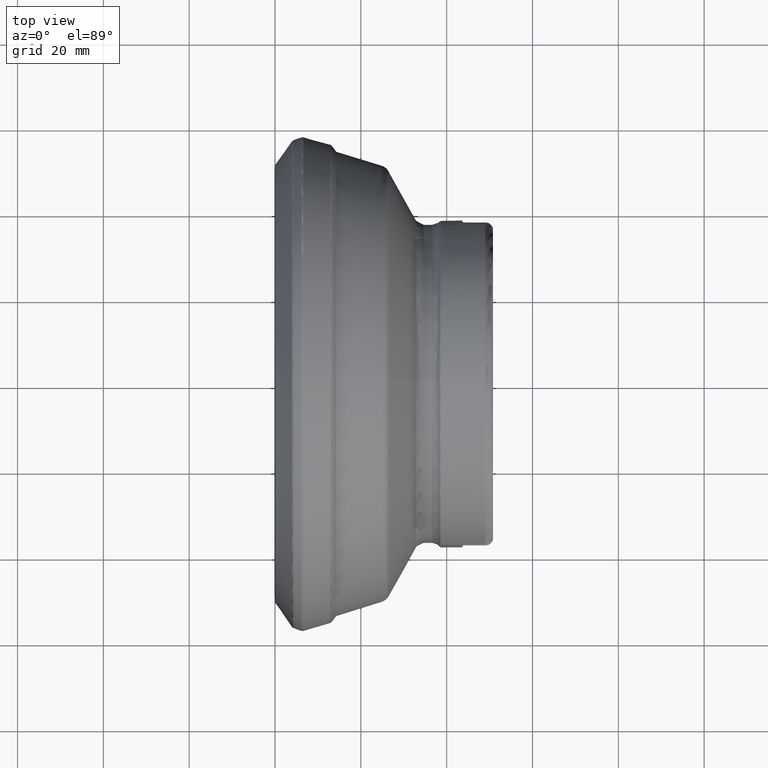
[diagram: clean part render]
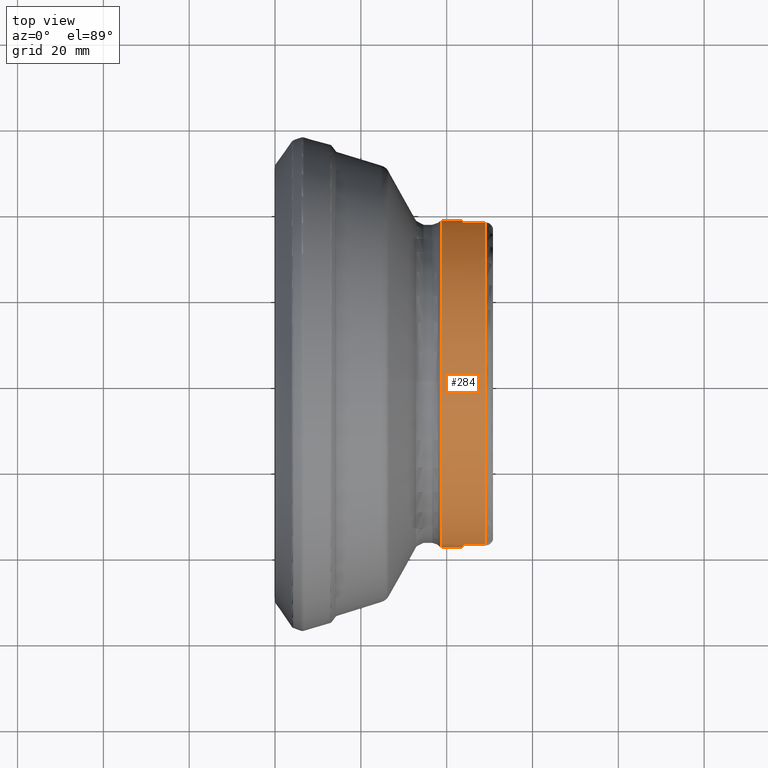
[diagram: same view with one face highlighted and labeled with its STEP entity id]
A machine part, top view. The second image highlights one B-rep face of the part: STEP entity #284.
In plain terms, the highlighted cylindrical surface (bore or boss wall) has radius 38.1 mm, axis along (-1, 0, 0).
Its self-contained STEP definition (entity closure, byte-faithful):
#111=CYLINDRICAL_SURFACE('',#1171,38.1);
#190=LINE('',#1877,#214);
#191=LINE('',#1901,#215);
#194=LINE('',#1907,#218);
#195=LINE('',#1928,#219);
#214=VECTOR('',#1365,1.);
#215=VECTOR('',#1368,1.);
#218=VECTOR('',#1373,1.);
#219=VECTOR('',#1376,1.);
#284=ADVANCED_FACE('',(#461,#462),#111,.T.);
#379=B_SPLINE_CURVE_WITH_KNOTS('',3,(#1934,#1935,#1936,#1937,#1938,#1939,
#1940,#1941,#1942,#1943,#1944,#1945,#1946,#1947,#1948,#1949),
 .UNSPECIFIED.,.F.,.F.,(4,3,3,3,3,4),(0.,0.211260637170696,0.422426481037291,
0.63508121501719,0.850707702014662,1.),.UNSPECIFIED.);
#380=B_SPLINE_CURVE_WITH_KNOTS('',3,(#1953,#1954,#1955,#1956,#1957,#1958,
#1959,#1960,#1961,#1962,#1963,#1964,#1965,#1966,#1967,#1968),
 .UNSPECIFIED.,.F.,.F.,(4,3,3,3,3,4),(0.,0.218315517150565,0.436679505597778,
0.654183629157567,0.869008966561983,1.),.UNSPECIFIED.);
#381=B_SPLINE_CURVE_WITH_KNOTS('',3,(#1974,#1975,#1976,#1977,#1978,#1979,
#1980,#1981,#1982,#1983,#1984,#1985,#1986,#1987,#1988,#1989),
 .UNSPECIFIED.,.F.,.F.,(4,3,3,3,3,4),(0.,0.218322961471812,0.436694534207853,
0.65420384479731,0.86902846336515,1.),.UNSPECIFIED.);
#382=B_SPLINE_CURVE_WITH_KNOTS('',3,(#1993,#1994,#1995,#1996,#1997,#1998,
#1999,#2000,#2001,#2002,#2003,#2004,#2005,#2006,#2007,#2008),
 .UNSPECIFIED.,.F.,.F.,(4,3,3,3,3,4),(0.,0.211268137601659,0.42244165719353,
0.635101326784174,0.850726867905933,1.),.UNSPECIFIED.);
#461=FACE_BOUND('',#573,.T.);
#462=FACE_BOUND('',#574,.T.);
#573=EDGE_LOOP('',(#776));
#574=EDGE_LOOP('',(#777,#778,#779,#780,#781,#782,#783,#784,#785,#786,#787,
#788));
#776=ORIENTED_EDGE('',*,*,#950,.T.);
#777=ORIENTED_EDGE('',*,*,#995,.F.);
#778=ORIENTED_EDGE('',*,*,#1009,.T.);
#779=ORIENTED_EDGE('',*,*,#992,.F.);
#780=ORIENTED_EDGE('',*,*,#998,.T.);
#781=ORIENTED_EDGE('',*,*,#1001,.F.);
#782=ORIENTED_EDGE('',*,*,#1000,.T.);
#783=ORIENTED_EDGE('',*,*,#989,.F.);
#784=ORIENTED_EDGE('',*,*,#1010,.T.);
#785=ORIENTED_EDGE('',*,*,#986,.F.);
#786=ORIENTED_EDGE('',*,*,#1005,.T.);
#787=ORIENTED_EDGE('',*,*,#1006,.F.);
#788=ORIENTED_EDGE('',*,*,#1003,.T.);
#856=VERTEX_POINT('',#1709);
#887=VERTEX_POINT('',#1876);
#888=VERTEX_POINT('',#1878);
#889=VERTEX_POINT('',#1900);
#890=VERTEX_POINT('',#1902);
#891=VERTEX_POINT('',#1906);
#892=VERTEX_POINT('',#1908);
#893=VERTEX_POINT('',#1927);
#894=VERTEX_POINT('',#1929);
#895=VERTEX_POINT('',#1933);
#896=VERTEX_POINT('',#1952);
#897=VERTEX_POINT('',#1973);
#898=VERTEX_POINT('',#1992);
#950=EDGE_CURVE('',#856,#856,#1042,.T.);
#986=EDGE_CURVE('',#887,#888,#190,.T.);
#989=EDGE_CURVE('',#889,#890,#191,.T.);
#992=EDGE_CURVE('',#891,#892,#194,.T.);
#995=EDGE_CURVE('',#893,#894,#195,.T.);
#998=EDGE_CURVE('',#891,#895,#379,.T.);
#1000=EDGE_CURVE('',#896,#890,#380,.T.);
#1001=EDGE_CURVE('',#896,#895,#1065,.T.);
#1003=EDGE_CURVE('',#897,#894,#381,.T.);
#1005=EDGE_CURVE('',#887,#898,#382,.T.);
#1006=EDGE_CURVE('',#897,#898,#1066,.T.);
#1009=EDGE_CURVE('',#893,#892,#1069,.T.);
#1010=EDGE_CURVE('',#889,#888,#1070,.T.);
#1042=CIRCLE('',#1109,38.1);
#1065=CIRCLE('',#1155,38.1);
#1066=CIRCLE('',#1159,38.1);
#1069=CIRCLE('',#1169,38.1);
#1070=CIRCLE('',#1170,38.1);
#1109=AXIS2_PLACEMENT_3D('',#1708,#1280,#1281);
#1155=AXIS2_PLACEMENT_3D('',#1970,#1386,#1387);
#1159=AXIS2_PLACEMENT_3D('',#2010,#1396,#1397);
#1169=AXIS2_PLACEMENT_3D('',#2020,#1416,#1417);
#1170=AXIS2_PLACEMENT_3D('',#2021,#1418,#1419);
#1171=AXIS2_PLACEMENT_3D('',#2022,#1420,#1421);
#1280=DIRECTION('',(1.,0.,0.));
#1281=DIRECTION('',(0.,0.,-1.));
#1365=DIRECTION('',(1.,0.,0.));
#1368=DIRECTION('',(-1.,0.,0.));
#1373=DIRECTION('',(1.,0.,0.));
#1376=DIRECTION('',(-1.,0.,0.));
#1386=DIRECTION('',(1.,0.,5.2968655755017E-16));
#1387=DIRECTION('',(5.46369598732853E-16,0.,-1.));
#1396=DIRECTION('',(1.,0.,5.2968655755017E-16));
#1397=DIRECTION('',(5.46369598732853E-16,0.,-1.));
#1416=DIRECTION('',(-1.,0.,0.));
#1417=DIRECTION('',(0.,0.,1.));
#1418=DIRECTION('',(-1.,0.,0.));
#1419=DIRECTION('',(0.,0.,1.));
#1420=DIRECTION('',(-1.,0.,0.));
#1421=DIRECTION('',(0.,0.,1.));
#1708=CARTESIAN_POINT('',(38.850243328103,0.,0.));
#1709=CARTESIAN_POINT('',(38.850243328103,0.,-38.1));
#1876=CARTESIAN_POINT('',(44.46,-37.5333106687913,-6.54680000000002));
#1877=CARTESIAN_POINT('',(5.,-37.5333106687913,-6.54680000000003));
#1878=CARTESIAN_POINT('',(49.0000000000003,-37.5333106687952,-6.54680000000002));
#1900=CARTESIAN_POINT('',(48.9999999999999,37.5333106687913,-6.54680000000002));
#1901=CARTESIAN_POINT('',(5.,37.5333106687913,-6.54680000000003));
#1902=CARTESIAN_POINT('',(44.46,37.5333106687913,-6.54680000000002));
#1906=CARTESIAN_POINT('',(44.46,37.5321937776091,6.55319999999998));
#1907=CARTESIAN_POINT('',(5.,37.5321937776091,6.55319999999998));
#1908=CARTESIAN_POINT('',(48.9999999999999,37.5321937776091,6.55319999999998));
#1927=CARTESIAN_POINT('',(48.9999999999999,-37.5321937776091,6.55319999999998));
#1928=CARTESIAN_POINT('',(5.,-37.5321937776091,6.55319999999998));
#1929=CARTESIAN_POINT('',(44.46,-37.5321937776091,6.55319999999998));
#1933=CARTESIAN_POINT('',(43.66,37.6631210836277,5.75319999999998));
#1934=CARTESIAN_POINT('',(44.46,37.5321937776091,6.55319999999998));
#1935=CARTESIAN_POINT('',(44.3714188113453,37.5321937776091,6.55319999999998));
#1936=CARTESIAN_POINT('',(44.2816171420485,37.5348460844288,6.53805729414537));
#1937=CARTESIAN_POINT('',(44.1980536111645,37.5398671201076,6.50909952333362));
#1938=CARTESIAN_POINT('',(44.1145110303439,37.5448868969716,6.48014901247282));
#1939=CARTESIAN_POINT('',(44.0349129585389,37.5524035807129,6.43661655677731));
#1940=CARTESIAN_POINT('',(43.9656648154073,37.5616507507402,6.38219342228169));
#1941=CARTESIAN_POINT('',(43.8959240590744,37.5709637027196,6.32738313582369));
#1942=CARTESIAN_POINT('',(43.8347780038529,37.5822747721708,6.26005559082365));
#1943=CARTESIAN_POINT('',(43.7870116922627,37.5945033147956,6.18573524440085));
#1944=CARTESIAN_POINT('',(43.7385869844958,37.6069004118983,6.11039048913619));
#1945=CARTESIAN_POINT('',(43.7025901626869,37.6205705411518,6.02581258794613));
#1946=CARTESIAN_POINT('',(43.6818468347148,37.6342886940647,5.93888158593833));
#1947=CARTESIAN_POINT('',(43.667380490408,37.6438556991064,5.87825612566157));
#1948=CARTESIAN_POINT('',(43.66,37.6535992346279,5.81553444897055));
#1949=CARTESIAN_POINT('',(43.66,37.6631210836277,5.75319999999998));
#1952=CARTESIAN_POINT('',(43.66,37.6640981540777,-5.74680000000002));
#1953=CARTESIAN_POINT('',(43.66,37.6640981540777,-5.74680000000002));
#1954=CARTESIAN_POINT('',(43.66,37.6502909714423,-5.83729124417257));
#1955=CARTESIAN_POINT('',(43.6757774622788,37.6359495551653,-5.92897667597814));
#1956=CARTESIAN_POINT('',(43.7060422986636,37.6223123405002,-6.01428417634594));
#1957=CARTESIAN_POINT('',(43.7363106222923,37.6086735544969,-6.09960150620881));
#1958=CARTESIAN_POINT('',(43.7819194887008,37.5953649354798,-6.18090909345072));
#1959=CARTESIAN_POINT('',(43.8391853709283,37.5836453000991,-6.25136832672156));
#1960=CARTESIAN_POINT('',(43.8962184440716,37.5719733097991,-6.32154111457437));
#1961=CARTESIAN_POINT('',(43.9664308689839,37.5615593553777,-6.38291111838323));
#1962=CARTESIAN_POINT('',(44.0440045385,37.5534732610144,-6.43013577106091));
#1963=CARTESIAN_POINT('',(44.1206301406131,37.5454859909368,-6.47678326715832));
#1964=CARTESIAN_POINT('',(44.2065992186103,37.5395550929098,-6.51092619501384));
#1965=CARTESIAN_POINT('',(44.2946604345391,37.5363192994313,-6.52952781226505));
#1966=CARTESIAN_POINT('',(44.3488510171554,37.534328076258,-6.54097476386362));
#1967=CARTESIAN_POINT('',(44.4045778301136,37.5333106687913,-6.54680000000002));
#1968=CARTESIAN_POINT('',(44.46,37.5333106687913,-6.54680000000002));
#1970=CARTESIAN_POINT('',(43.66,0.,0.));
#1973=CARTESIAN_POINT('',(43.66,-37.6631210836277,5.75319999999998));
#1974=CARTESIAN_POINT('',(43.66,-37.6631210836277,5.75319999999998));
#1975=CARTESIAN_POINT('',(43.66,-37.6492978604999,5.84369324313899));
#1976=CARTESIAN_POINT('',(43.6757781337028,-37.6349401586361,5.93538063825415));
#1977=CARTESIAN_POINT('',(43.7060443436917,-37.6212877589164,6.02068994059719));
#1978=CARTESIAN_POINT('',(43.7363140514479,-37.6076337814333,6.10600910185864));
#1979=CARTESIAN_POINT('',(43.7819250922941,-37.5943106444462,6.18731844099184));
#1980=CARTESIAN_POINT('',(43.8391939689025,-37.5825784529401,6.25777890537852));
#1981=CARTESIAN_POINT('',(43.8962293909592,-37.5708940872982,6.32795214017194));
#1982=CARTESIAN_POINT('',(43.966444882224,-37.5604693158802,6.38932237409401));
#1983=CARTESIAN_POINT('',(44.0440220526838,-37.5523750249864,6.43654643289225));
#1984=CARTESIAN_POINT('',(44.1206490498869,-37.5443798738098,6.48319208650406));
#1985=CARTESIAN_POINT('',(44.2066196939437,-37.5384433070513,6.51733308244535));
#1986=CARTESIAN_POINT('',(44.2946822393625,-37.535204640827,6.53593241789117));
#1987=CARTESIAN_POINT('',(44.3488658694234,-37.5332119356224,6.54737632411012));
#1988=CARTESIAN_POINT('',(44.4045852038698,-37.5321937776091,6.55319999999998));
#1989=CARTESIAN_POINT('',(44.46,-37.5321937776091,6.55319999999998));
#1992=CARTESIAN_POINT('',(43.66,-37.6640981540777,-5.74680000000002));
#1993=CARTESIAN_POINT('',(44.46,-37.5333106687913,-6.54680000000002));
#1994=CARTESIAN_POINT('',(44.3714168994239,-37.5333106687913,-6.54680000000002));
#1995=CARTESIAN_POINT('',(44.2816132902459,-37.5359604245909,-6.53165666551559));
#1996=CARTESIAN_POINT('',(44.1980479081946,-37.5409766070611,-6.50269754702527));
#1997=CARTESIAN_POINT('',(44.1145034371916,-37.545991534303,-6.47374567514245));
#1998=CARTESIAN_POINT('',(44.0349034923914,-37.5535009482958,-6.43021104416331));
#1999=CARTESIAN_POINT('',(43.9656539950419,-37.5627390731328,-6.37578491824683));
#2000=CARTESIAN_POINT('',(43.8959128014015,-37.5720427919725,-6.32097234729798));
#2001=CARTESIAN_POINT('',(43.8347665019229,-37.5833425464456,-6.25364184115346));
#2002=CARTESIAN_POINT('',(43.7870007158877,-37.5955586074757,-6.17931816561189));
#2003=CARTESIAN_POINT('',(43.7385778620612,-37.6079427130604,-6.10397209104004));
#2004=CARTESIAN_POINT('',(43.7025829593458,-37.6215982596133,-6.01939277400059));
#2005=CARTESIAN_POINT('',(43.6818418319562,-37.6353013937994,-5.93246061915957));
#2006=CARTESIAN_POINT('',(43.667378787394,-37.6448567586864,-5.87184175280112));
#2007=CARTESIAN_POINT('',(43.66,-37.6545882340751,-5.80912730570353));
#2008=CARTESIAN_POINT('',(43.66,-37.6640981540777,-5.74680000000002));
#2010=CARTESIAN_POINT('',(43.66,0.,0.));
#2020=CARTESIAN_POINT('',(48.9999999999999,0.,0.));
#2021=CARTESIAN_POINT('',(48.9999999999999,0.,0.));
#2022=CARTESIAN_POINT('',(5.,0.,0.));